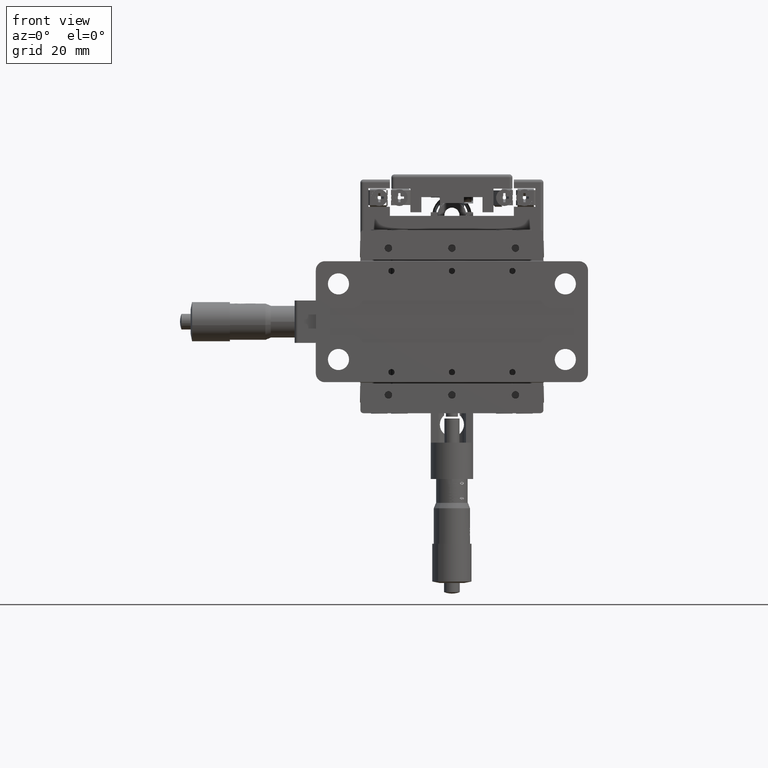
[diagram: clean part render]
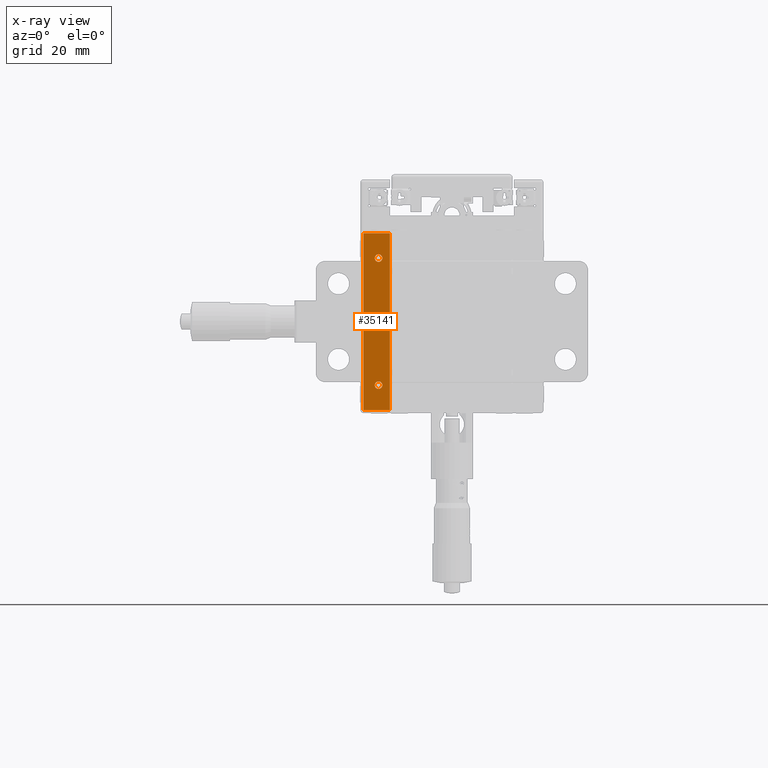
[diagram: x-ray — body ghosted, one internal face saturated and labeled with its STEP entity id]
A machine part, front view, then the same camera in x-ray: the body is ghosted and one INTERNAL B-rep face — a face not visible from any outside direction — is saturated and labeled: STEP entity #35141.
In plain terms, the highlighted planar face has unit normal (0, -1, 0).
Its self-contained STEP definition (entity closure, byte-faithful):
#139 = VECTOR ( 'NONE', #43032, 1000.000000000000000 ) ;
#1551 = CIRCLE ( 'NONE', #38015, 1.249999999999987100 ) ;
#2527 = ORIENTED_EDGE ( 'NONE', *, *, #75640, .T. ) ;
#3585 = DIRECTION ( 'NONE',  ( 0.0000000000000000000, 0.0000000000000000000, 1.000000000000000000 ) ) ;
#4473 = ORIENTED_EDGE ( 'NONE', *, *, #67432, .T. ) ;
#4490 = EDGE_CURVE ( 'NONE', #28324, #76451, #1551, .T. ) ;
#5177 = VERTEX_POINT ( 'NONE', #32673 ) ;
#5753 = FACE_OUTER_BOUND ( 'NONE', #46747, .T. ) ;
#8791 = EDGE_CURVE ( 'NONE', #71772, #74935, #66979, .T. ) ;
#8954 = LINE ( 'NONE', #71066, #24968 ) ;
#11866 = ORIENTED_EDGE ( 'NONE', *, *, #17672, .F. ) ;
#12868 = VERTEX_POINT ( 'NONE', #49654 ) ;
#13676 = CARTESIAN_POINT ( 'NONE',  ( -24.25000000000000000, 24.19999999999999600, 21.00000000000002800 ) ) ;
#14521 = VECTOR ( 'NONE', #83885, 1000.000000000000000 ) ;
#17430 = CIRCLE ( 'NONE', #19157, 1.249999999999987100 ) ;
#17672 = EDGE_CURVE ( 'NONE', #19193, #44194, #80720, .T. ) ;
#17778 = DIRECTION ( 'NONE',  ( -0.0000000000000000000, 1.000000000000000000, -0.0000000000000000000 ) ) ;
#17990 = ORIENTED_EDGE ( 'NONE', *, *, #72962, .F. ) ;
#19157 = AXIS2_PLACEMENT_3D ( 'NONE', #78063, #37042, #84980 ) ;
#19193 = VERTEX_POINT ( 'NONE', #74879 ) ;
#19238 = ORIENTED_EDGE ( 'NONE', *, *, #8791, .F. ) ;
#19605 = FACE_BOUND ( 'NONE', #72075, .T. ) ;
#20056 = AXIS2_PLACEMENT_3D ( 'NONE', #78527, #37531, #85455 ) ;
#20512 = DIRECTION ( 'NONE',  ( 0.0000000000000000000, 0.0000000000000000000, 1.000000000000000000 ) ) ;
#21037 = CARTESIAN_POINT ( 'NONE',  ( -24.25000000000000000, 24.19999999999999600, 19.75000000000004300 ) ) ;
#23533 = PLANE ( 'NONE',  #20056 ) ;
#24239 = AXIS2_PLACEMENT_3D ( 'NONE', #13676, #61480, #20512 ) ;
#24968 = VECTOR ( 'NONE', #36925, 1000.000000000000000 ) ;
#25837 = CARTESIAN_POINT ( 'NONE',  ( -24.25000000000000000, 24.19999999999999600, -22.24999999999996100 ) ) ;
#26884 = ORIENTED_EDGE ( 'NONE', *, *, #4490, .F. ) ;
#28261 = DIRECTION ( 'NONE',  ( -0.0000000000000000000, 1.000000000000000000, -0.0000000000000000000 ) ) ;
#28324 = VERTEX_POINT ( 'NONE', #25837 ) ;
#29700 = EDGE_CURVE ( 'NONE', #62840, #38089, #44791, .T. ) ;
#31105 = EDGE_CURVE ( 'NONE', #38089, #62840, #17430, .T. ) ;
#32673 = CARTESIAN_POINT ( 'NONE',  ( -29.25000000000000000, 24.19999999999999600, 29.25000000000000000 ) ) ;
#32945 = VECTOR ( 'NONE', #45060, 1000.000000000000000 ) ;
#35141 = ADVANCED_FACE ( 'NONE', ( #74166, #58170, #19605, #5753 ), #23533, .F. ) ;
#35441 = CARTESIAN_POINT ( 'NONE',  ( -20.50000000000000000, 24.19999999999999600, -29.25000000000000000 ) ) ;
#35947 = CARTESIAN_POINT ( 'NONE',  ( -20.50000000000000000, 24.19999999999999600, -30.25000000000000000 ) ) ;
#36420 = CARTESIAN_POINT ( 'NONE',  ( -30.25000000000000000, 24.19999999999999600, 29.25000000000000000 ) ) ;
#36925 = DIRECTION ( 'NONE',  ( -1.000000000000000000, 0.0000000000000000000, 0.0000000000000000000 ) ) ;
#37042 = DIRECTION ( 'NONE',  ( -0.0000000000000000000, 1.000000000000000000, -0.0000000000000000000 ) ) ;
#37531 = DIRECTION ( 'NONE',  ( 0.0000000000000000000, -1.000000000000000000, 0.0000000000000000000 ) ) ;
#38015 = AXIS2_PLACEMENT_3D ( 'NONE', #69228, #28261, #76071 ) ;
#38089 = VERTEX_POINT ( 'NONE', #48847 ) ;
#39958 = CARTESIAN_POINT ( 'NONE',  ( -24.25000000000000000, 24.19999999999999600, -20.99999999999997500 ) ) ;
#43032 = DIRECTION ( 'NONE',  ( 1.000000000000000000, -0.0000000000000000000, -0.0000000000000000000 ) ) ;
#44194 = VERTEX_POINT ( 'NONE', #21037 ) ;
#44490 = DIRECTION ( 'NONE',  ( -0.0000000000000000000, 1.000000000000000000, -0.0000000000000000000 ) ) ;
#44791 = CIRCLE ( 'NONE', #80361, 1.249999999999987100 ) ;
#45060 = DIRECTION ( 'NONE',  ( -0.0000000000000000000, -0.0000000000000000000, 1.000000000000000000 ) ) ;
#45596 = ORIENTED_EDGE ( 'NONE', *, *, #84786, .F. ) ;
#46747 = EDGE_LOOP ( 'NONE', ( #19238, #4473, #70412, #2527 ) ) ;
#46868 = DIRECTION ( 'NONE',  ( 0.0000000000000000000, 0.0000000000000000000, 1.000000000000000000 ) ) ;
#48847 = CARTESIAN_POINT ( 'NONE',  ( -24.25000000000000000, 24.19999999999999600, 1.249999999999987100 ) ) ;
#49654 = CARTESIAN_POINT ( 'NONE',  ( -29.25000000000000000, 24.19999999999999600, -29.25000000000000000 ) ) ;
#52604 = LINE ( 'NONE', #36420, #139 ) ;
#53900 = AXIS2_PLACEMENT_3D ( 'NONE', #85499, #44490, #3585 ) ;
#54359 = EDGE_LOOP ( 'NONE', ( #11866, #45596 ) ) ;
#58170 = FACE_BOUND ( 'NONE', #77317, .T. ) ;
#58779 = CARTESIAN_POINT ( 'NONE',  ( -24.25000000000000000, 24.19999999999999600, 0.0000000000000000000 ) ) ;
#61480 = DIRECTION ( 'NONE',  ( -0.0000000000000000000, 1.000000000000000000, -0.0000000000000000000 ) ) ;
#62840 = VERTEX_POINT ( 'NONE', #81974 ) ;
#65649 = DIRECTION ( 'NONE',  ( 0.0000000000000000000, 0.0000000000000000000, 1.000000000000000000 ) ) ;
#65842 = ORIENTED_EDGE ( 'NONE', *, *, #31105, .F. ) ;
#66584 = CARTESIAN_POINT ( 'NONE',  ( -20.50000000000000000, 24.19999999999999600, 29.25000000000000000 ) ) ;
#66979 = LINE ( 'NONE', #35947, #14521 ) ;
#67432 = EDGE_CURVE ( 'NONE', #71772, #12868, #8954, .T. ) ;
#69228 = CARTESIAN_POINT ( 'NONE',  ( -24.25000000000000000, 24.19999999999999600, -20.99999999999997500 ) ) ;
#70412 = ORIENTED_EDGE ( 'NONE', *, *, #81657, .T. ) ;
#71066 = CARTESIAN_POINT ( 'NONE',  ( -30.25000000000000000, 24.19999999999999600, -29.25000000000000000 ) ) ;
#71772 = VERTEX_POINT ( 'NONE', #35441 ) ;
#72075 = EDGE_LOOP ( 'NONE', ( #65842, #81860 ) ) ;
#72281 = CARTESIAN_POINT ( 'NONE',  ( -29.25000000000000000, 24.19999999999999600, 30.25000000000000000 ) ) ;
#72962 = EDGE_CURVE ( 'NONE', #76451, #28324, #78999, .T. ) ;
#74166 = FACE_BOUND ( 'NONE', #54359, .T. ) ;
#74443 = AXIS2_PLACEMENT_3D ( 'NONE', #39958, #87838, #46868 ) ;
#74879 = CARTESIAN_POINT ( 'NONE',  ( -24.25000000000000000, 24.19999999999999600, 22.25000000000001800 ) ) ;
#74935 = VERTEX_POINT ( 'NONE', #66584 ) ;
#75640 = EDGE_CURVE ( 'NONE', #5177, #74935, #52604, .T. ) ;
#75773 = CARTESIAN_POINT ( 'NONE',  ( -24.25000000000000000, 24.19999999999999600, -19.74999999999998600 ) ) ;
#76071 = DIRECTION ( 'NONE',  ( 0.0000000000000000000, 0.0000000000000000000, 1.000000000000000000 ) ) ;
#76451 = VERTEX_POINT ( 'NONE', #75773 ) ;
#77317 = EDGE_LOOP ( 'NONE', ( #17990, #26884 ) ) ;
#78063 = CARTESIAN_POINT ( 'NONE',  ( -24.25000000000000000, 24.19999999999999600, 0.0000000000000000000 ) ) ;
#78527 = CARTESIAN_POINT ( 'NONE',  ( -30.25000000000000000, 24.19999999999999600, 30.25000000000000000 ) ) ;
#78999 = CIRCLE ( 'NONE', #74443, 1.249999999999987100 ) ;
#80361 = AXIS2_PLACEMENT_3D ( 'NONE', #58779, #17778, #65649 ) ;
#80720 = CIRCLE ( 'NONE', #24239, 1.249999999999987100 ) ;
#81657 = EDGE_CURVE ( 'NONE', #12868, #5177, #87546, .T. ) ;
#81860 = ORIENTED_EDGE ( 'NONE', *, *, #29700, .F. ) ;
#81974 = CARTESIAN_POINT ( 'NONE',  ( -24.25000000000000000, 24.19999999999999600, -1.249999999999987100 ) ) ;
#83885 = DIRECTION ( 'NONE',  ( -0.0000000000000000000, -0.0000000000000000000, 1.000000000000000000 ) ) ;
#84786 = EDGE_CURVE ( 'NONE', #44194, #19193, #85202, .T. ) ;
#84980 = DIRECTION ( 'NONE',  ( 0.0000000000000000000, 0.0000000000000000000, 1.000000000000000000 ) ) ;
#85202 = CIRCLE ( 'NONE', #53900, 1.249999999999987100 ) ;
#85455 = DIRECTION ( 'NONE',  ( 0.0000000000000000000, -0.0000000000000000000, -1.000000000000000000 ) ) ;
#85499 = CARTESIAN_POINT ( 'NONE',  ( -24.25000000000000000, 24.19999999999999600, 21.00000000000002800 ) ) ;
#87546 = LINE ( 'NONE', #72281, #32945 ) ;
#87838 = DIRECTION ( 'NONE',  ( -0.0000000000000000000, 1.000000000000000000, -0.0000000000000000000 ) ) ;